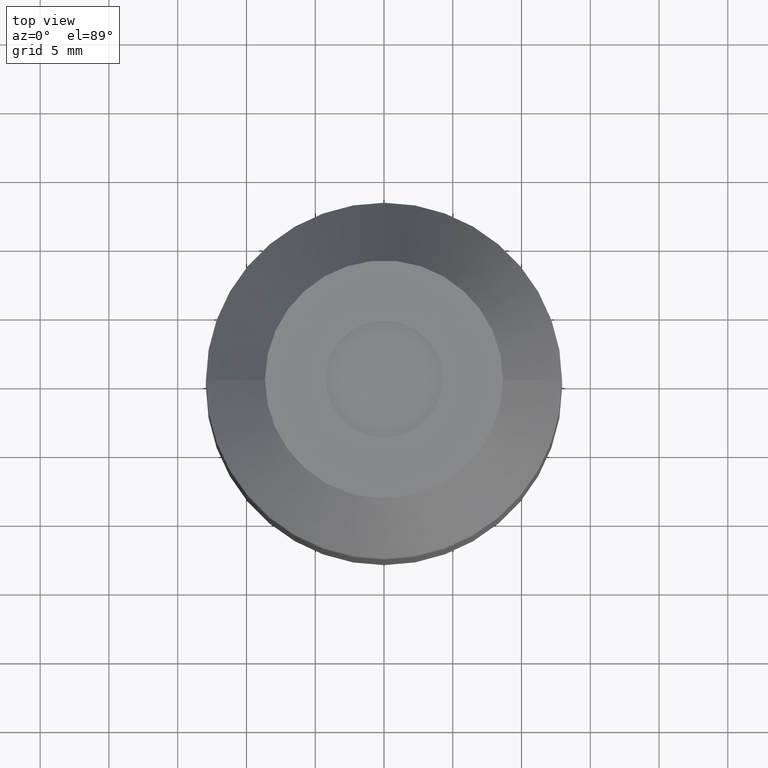
[diagram: clean part render]
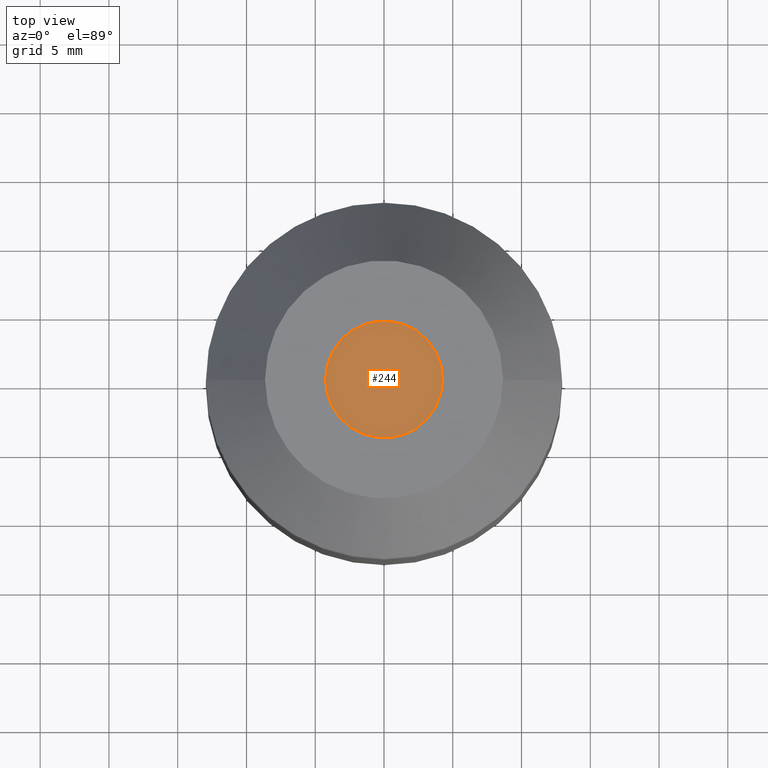
[diagram: same view with one face highlighted and labeled with its STEP entity id]
A machine part, top view. The second image highlights one B-rep face of the part: STEP entity #244.
In plain terms, the highlighted planar face has unit normal (0, 0, -1).
Its self-contained STEP definition (entity closure, byte-faithful):
#26 = CARTESIAN_POINT ( 'NONE',  ( -4.250000000000000000, 5.204748896376249713E-16, 37.69999999999999574 ) ) ;
#72 = VERTEX_POINT ( 'NONE', #962 ) ;
#209 = AXIS2_PLACEMENT_3D ( 'NONE', #579, #558, #745 ) ;
#243 = DIRECTION ( 'NONE',  ( 0.000000000000000000, 0.000000000000000000, 1.000000000000000000 ) ) ;
#244 = ADVANCED_FACE ( 'NONE', ( #421 ), #899, .F. ) ;
#280 = AXIS2_PLACEMENT_3D ( 'NONE', #993, #832, #1083 ) ;
#297 = CIRCLE ( 'NONE', #209, 4.250000000000000000 ) ;
#312 = DIRECTION ( 'NONE',  ( 1.000000000000000000, 0.000000000000000000, 0.000000000000000000 ) ) ;
#362 = ORIENTED_EDGE ( 'NONE', *, *, #714, .T. ) ;
#421 = FACE_OUTER_BOUND ( 'NONE', #817, .T. ) ;
#558 = DIRECTION ( 'NONE',  ( 0.000000000000000000, 0.000000000000000000, 1.000000000000000000 ) ) ;
#579 = CARTESIAN_POINT ( 'NONE',  ( 0.000000000000000000, 0.000000000000000000, 37.69999999999999574 ) ) ;
#631 = EDGE_CURVE ( 'NONE', #72, #1042, #297, .T. ) ;
#714 = EDGE_CURVE ( 'NONE', #1042, #72, #819, .T. ) ;
#745 = DIRECTION ( 'NONE',  ( 1.000000000000000000, 0.000000000000000000, 0.000000000000000000 ) ) ;
#799 = AXIS2_PLACEMENT_3D ( 'NONE', #909, #243, #312 ) ;
#817 = EDGE_LOOP ( 'NONE', ( #921, #362 ) ) ;
#819 = CIRCLE ( 'NONE', #799, 4.250000000000000000 ) ;
#832 = DIRECTION ( 'NONE',  ( 0.000000000000000000, 0.000000000000000000, -1.000000000000000000 ) ) ;
#899 = PLANE ( 'NONE',  #280 ) ;
#909 = CARTESIAN_POINT ( 'NONE',  ( 0.000000000000000000, 0.000000000000000000, 37.69999999999999574 ) ) ;
#921 = ORIENTED_EDGE ( 'NONE', *, *, #631, .T. ) ;
#962 = CARTESIAN_POINT ( 'NONE',  ( 4.250000000000000000, 0.000000000000000000, 37.69999999999999574 ) ) ;
#993 = CARTESIAN_POINT ( 'NONE',  ( 0.000000000000000000, 4.250000000000000000, 37.69999999999999574 ) ) ;
#1042 = VERTEX_POINT ( 'NONE', #26 ) ;
#1083 = DIRECTION ( 'NONE',  ( 0.000000000000000000, -1.000000000000000000, 0.000000000000000000 ) ) ;